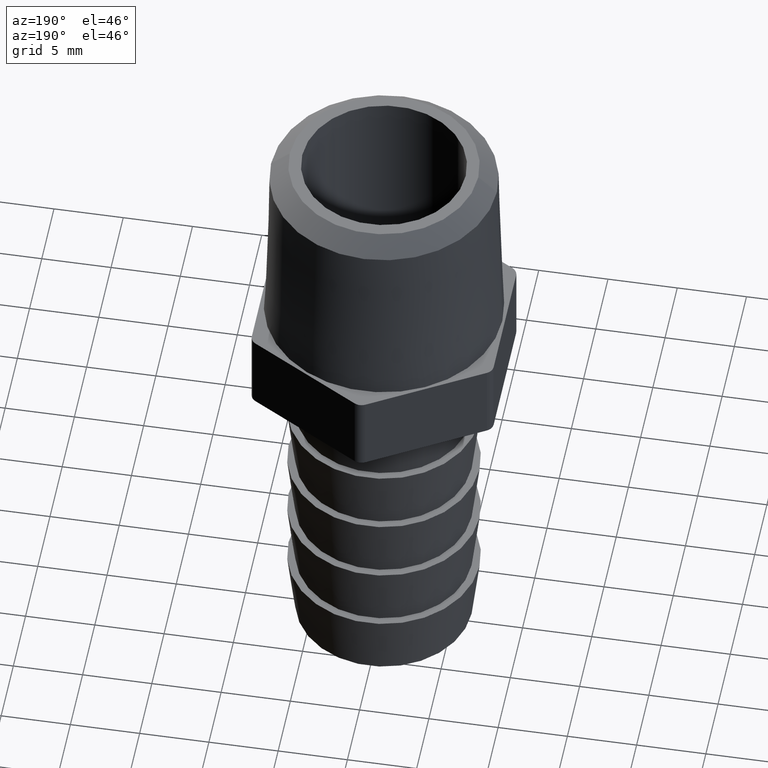
[diagram: clean part render]
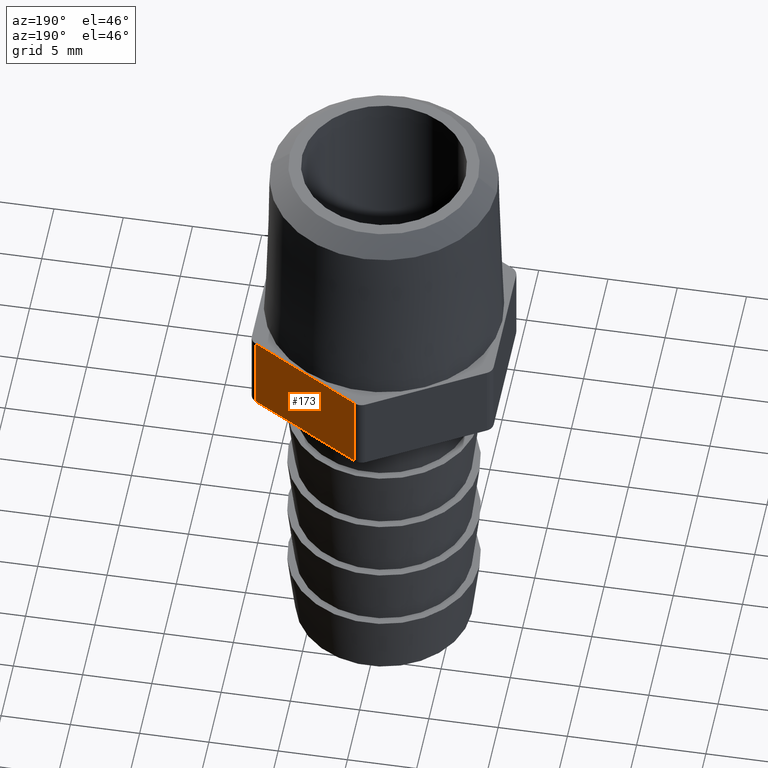
[diagram: same view with one face highlighted and labeled with its STEP entity id]
A machine part, auxiliary view. The second image highlights one B-rep face of the part: STEP entity #173.
In plain terms, the highlighted planar face has unit normal (-0.5, -0.866, 0).
Its self-contained STEP definition (entity closure, byte-faithful):
#27 = CARTESIAN_POINT ( 'NONE',  ( 0.3287499999999999300, 0.2071244090717782300, 0.1160000000000000100 ) ) ;
#109 = PLANE ( 'NONE',  #971 ) ;
#127 = CARTESIAN_POINT ( 'NONE',  ( 0.01500000000000004500, 0.3882680560300233500, -0.1160000000000000100 ) ) ;
#129 = LINE ( 'NONE', #736, #1061 ) ;
#163 = FACE_OUTER_BOUND ( 'NONE', #289, .T. ) ;
#173 = ADVANCED_FACE ( 'NONE', ( #163 ), #109, .F. ) ;
#177 = ORIENTED_EDGE ( 'NONE', *, *, #271, .T. ) ;
#216 = CARTESIAN_POINT ( 'NONE',  ( 0.01500000000000004500, 0.3882680560300233500, 0.1160000000000000100 ) ) ;
#218 = EDGE_CURVE ( 'NONE', #500, #842, #628, .T. ) ;
#271 = EDGE_CURVE ( 'NONE', #500, #1047, #1040, .T. ) ;
#289 = EDGE_LOOP ( 'NONE', ( #1006, #177, #329, #689 ) ) ;
#293 = CARTESIAN_POINT ( 'NONE',  ( 0.3437500000000000000, 0.1984641550339338300, 0.1160000000000000100 ) ) ;
#329 = ORIENTED_EDGE ( 'NONE', *, *, #744, .T. ) ;
#371 = VERTEX_POINT ( 'NONE', #127 ) ;
#379 = DIRECTION ( 'NONE',  ( -0.8660254037844386000, 0.5000000000000001100, 0.0000000000000000000 ) ) ;
#474 = DIRECTION ( 'NONE',  ( -0.5000000000000001100, -0.8660254037844386000, 0.0000000000000000000 ) ) ;
#500 = VERTEX_POINT ( 'NONE', #700 ) ;
#505 = VECTOR ( 'NONE', #667, 39.37007874015748100 ) ;
#510 = CARTESIAN_POINT ( 'NONE',  ( 0.01500000000000004500, 0.3882680560300233500, 0.1160000000000000100 ) ) ;
#598 = VECTOR ( 'NONE', #379, 39.37007874015748100 ) ;
#602 = LINE ( 'NONE', #510, #1020 ) ;
#628 = LINE ( 'NONE', #924, #598 ) ;
#667 = DIRECTION ( 'NONE',  ( 0.0000000000000000000, 0.0000000000000000000, -1.000000000000000000 ) ) ;
#689 = ORIENTED_EDGE ( 'NONE', *, *, #1038, .T. ) ;
#700 = CARTESIAN_POINT ( 'NONE',  ( 0.3287499999999999300, 0.2071244090717782300, 0.1160000000000000100 ) ) ;
#736 = CARTESIAN_POINT ( 'NONE',  ( 0.3437500000000000000, 0.1984641550339338300, -0.1160000000000000100 ) ) ;
#741 = DIRECTION ( 'NONE',  ( -0.8660254037844386000, 0.5000000000000001100, 0.0000000000000000000 ) ) ;
#744 = EDGE_CURVE ( 'NONE', #1047, #371, #129, .T. ) ;
#784 = CARTESIAN_POINT ( 'NONE',  ( 0.3287499999999999300, 0.2071244090717782300, -0.1160000000000000100 ) ) ;
#842 = VERTEX_POINT ( 'NONE', #216 ) ;
#924 = CARTESIAN_POINT ( 'NONE',  ( 0.3437500000000000000, 0.1984641550339338300, 0.1160000000000000100 ) ) ;
#971 = AXIS2_PLACEMENT_3D ( 'NONE', #293, #474, #1103 ) ;
#1006 = ORIENTED_EDGE ( 'NONE', *, *, #218, .F. ) ;
#1020 = VECTOR ( 'NONE', #1048, 39.37007874015748100 ) ;
#1038 = EDGE_CURVE ( 'NONE', #371, #842, #602, .T. ) ;
#1040 = LINE ( 'NONE', #27, #505 ) ;
#1047 = VERTEX_POINT ( 'NONE', #784 ) ;
#1048 = DIRECTION ( 'NONE',  ( -0.0000000000000000000, -0.0000000000000000000, 1.000000000000000000 ) ) ;
#1061 = VECTOR ( 'NONE', #741, 39.37007874015748100 ) ;
#1103 = DIRECTION ( 'NONE',  ( 0.8660254037844386000, -0.5000000000000001100, 0.0000000000000000000 ) ) ;